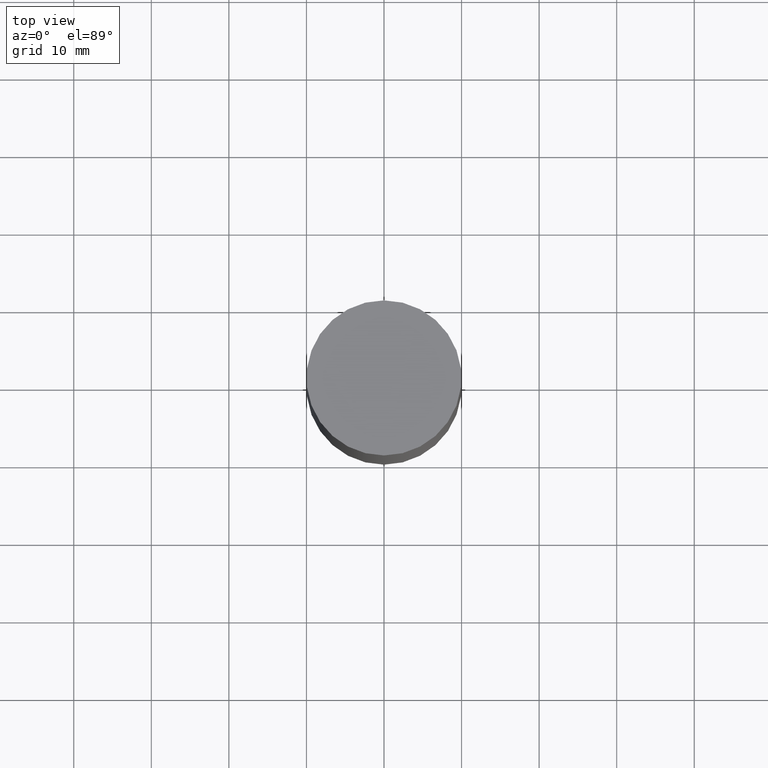
[diagram: clean part render]
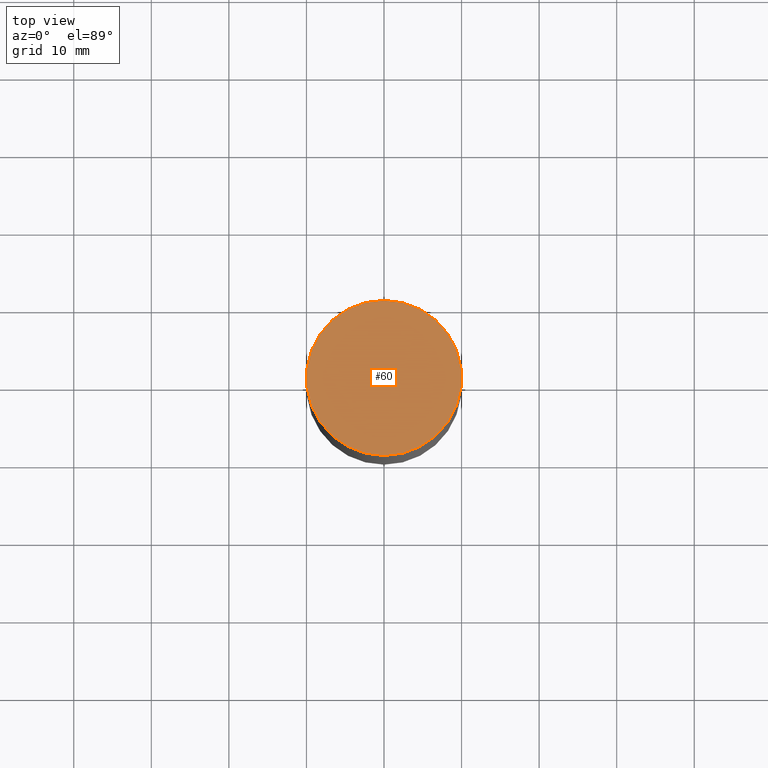
[diagram: same view with one face highlighted and labeled with its STEP entity id]
A machine part, top view. The second image highlights one B-rep face of the part: STEP entity #60.
In plain terms, the highlighted planar face has unit normal (-0, -0, 1).
Its self-contained STEP definition (entity closure, byte-faithful):
#60=ADVANCED_FACE('Unnamed[1]',(#144),#145,.T.);
#67=EDGE_CURVE('Unnamed[1]',#155,#155,#156,.T.);
#144=FACE_OUTER_BOUND('',#249,.T.);
#145=PLANE('',#250);
#155=VERTEX_POINT('',#263);
#156=CIRCLE('',#264,10.0000000000007);
#249=EDGE_LOOP('',(#364));
#250=AXIS2_PLACEMENT_3D('',#365,#366,#367);
#263=CARTESIAN_POINT('',(-5.51091059616327E-015,10.0000000000007,90.0000000000029));
#264=AXIS2_PLACEMENT_3D('',#377,#378,#379);
#364=ORIENTED_EDGE('',*,*,#67,.F.);
#365=CARTESIAN_POINT('',(-5.51091059616327E-015,5.00000000000032,90.0000000000029));
#366=DIRECTION('',(-6.12323399573677E-017,-1.22464679914735E-016,1.0));
#367=DIRECTION('',(1.23259516440783E-032,-1.0,-1.22464679914735E-016));
#377=CARTESIAN_POINT('',(-5.51091059616327E-015,-1.10218211923265E-014,90.0000000000029));
#378=DIRECTION('',(6.12323399573677E-017,1.22464679914735E-016,-1.0));
#379=DIRECTION('',(-1.23259516440783E-032,1.0,1.22464679914735E-016));